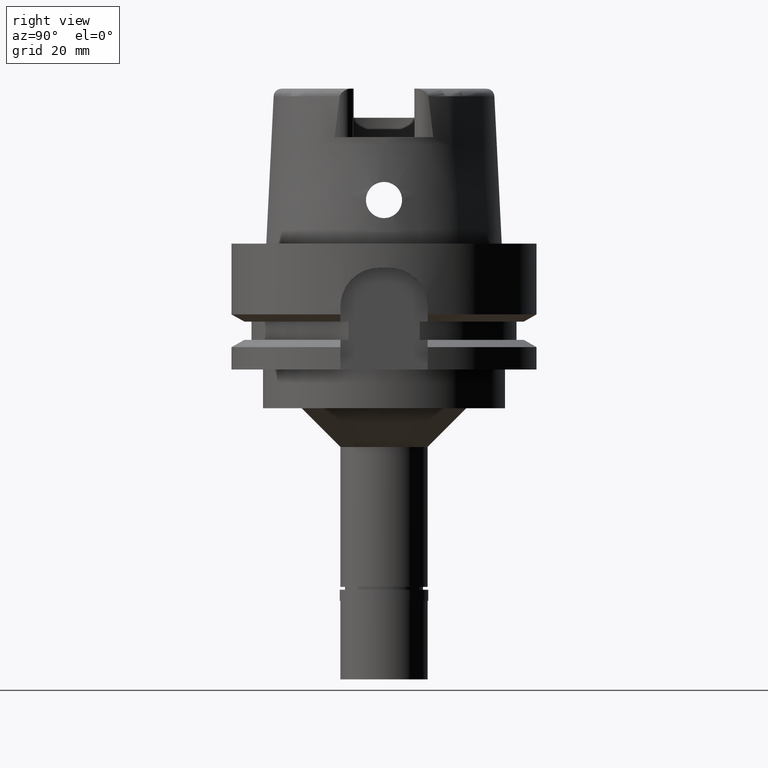
[diagram: clean part render]
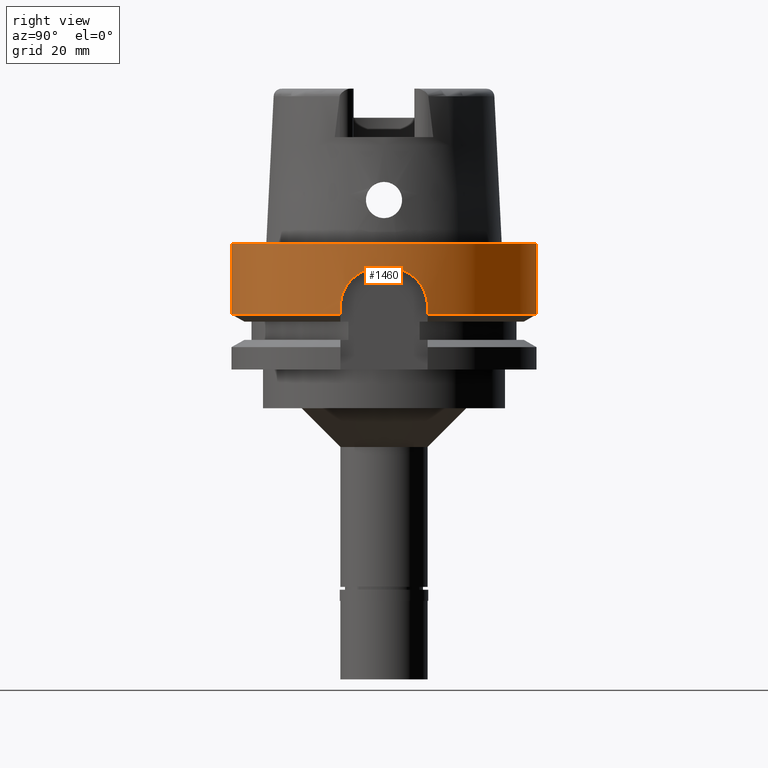
[diagram: same view with one face highlighted and labeled with its STEP entity id]
A machine part, right view. The second image highlights one B-rep face of the part: STEP entity #1460.
In plain terms, the highlighted cylindrical surface (partial cylindrical patch) has radius 31.5 mm, axis along (0, 0, 1).
Its self-contained STEP definition (entity closure, byte-faithful):
#11 = VERTEX_POINT ( 'NONE', #3044 ) ;
#12 = CARTESIAN_POINT ( 'NONE',  ( 30.56327291431076532, -7.624729290202544973, -8.515222109655489646 ) ) ;
#16 = CARTESIAN_POINT ( 'NONE',  ( 31.02035589035170915, 5.476087873240740755, -6.369416111996536678 ) ) ;
#35 = CARTESIAN_POINT ( 'NONE',  ( 0.0000000000000000000, -31.50000000000000000, 6.631732200427999741E-14 ) ) ;
#42 = CARTESIAN_POINT ( 'NONE',  ( 31.02757053954932687, -5.435059803492189090, -6.341903749152772107 ) ) ;
#46 = CARTESIAN_POINT ( 'NONE',  ( 30.69029763763957064, 7.097590143377178862, -7.819184594781064312 ) ) ;
#102 = CARTESIAN_POINT ( 'NONE',  ( 31.23407994377791397, 4.084403881573126505, -5.618500894994809869 ) ) ;
#167 = ORIENTED_EDGE ( 'NONE', *, *, #354, .T. ) ;
#233 = EDGE_LOOP ( 'NONE', ( #1655, #4086, #4481, #2196, #3278, #2844, #5002, #167, #491, #3403 ) ) ;
#257 = EDGE_CURVE ( 'NONE', #2624, #1244, #5349, .T. ) ;
#354 = EDGE_CURVE ( 'NONE', #3709, #3169, #5124, .T. ) ;
#357 = CARTESIAN_POINT ( 'NONE',  ( 30.89592524605593482, -6.138852804539231656, -6.866599488725563027 ) ) ;
#363 = CARTESIAN_POINT ( 'NONE',  ( 31.15709635213817563, 4.636122286652613056, -5.872856191461297115 ) ) ;
#386 = CARTESIAN_POINT ( 'NONE',  ( 30.47677177980666485, 7.964102462958325468, -9.060432586989918491 ) ) ;
#413 = CARTESIAN_POINT ( 'NONE',  ( 30.77181889420382532, 6.733922234502061954, -7.421215122936176911 ) ) ;
#434 = CARTESIAN_POINT ( 'NONE',  ( 30.91819629661552327, -6.025022942647708213, -6.773736874318711187 ) ) ;
#440 = CARTESIAN_POINT ( 'NONE',  ( 30.50382873061580113, 7.859456967087232293, -8.882649062110839822 ) ) ;
#457 = DIRECTION ( 'NONE',  ( 0.0000000000000000000, -1.000000000000000000, 0.0000000000000000000 ) ) ;
#458 = DIRECTION ( 'NONE',  ( 0.0000000000000000000, 1.000000000000000000, 0.0000000000000000000 ) ) ;
#466 = CARTESIAN_POINT ( 'NONE',  ( 31.10844215230088849, -4.952194311466096899, -6.043017180630205765 ) ) ;
#470 = CARTESIAN_POINT ( 'NONE',  ( 30.35392641264656177, 8.419581061281585121, -10.00832748738728384 ) ) ;
#491 = ORIENTED_EDGE ( 'NONE', *, *, #4059, .F. ) ;
#510 = LINE ( 'NONE', #35, #3993 ) ;
#582 = CARTESIAN_POINT ( 'NONE',  ( 31.48412298285999711, 1.000000000000000000, -5.000000000000000000 ) ) ;
#795 = CARTESIAN_POINT ( 'NONE',  ( 30.37188527435133523, -8.354571907115822427, -9.851686228476292939 ) ) ;
#830 = CARTESIAN_POINT ( 'NONE',  ( 30.38243151707309408, 8.316609398672291320, -9.755899222961659234 ) ) ;
#857 = CARTESIAN_POINT ( 'NONE',  ( 30.84359566670887887, 6.403566574054852190, -7.087235430991473351 ) ) ;
#861 = CARTESIAN_POINT ( 'NONE',  ( 0.0000000000000000000, 0.0000000000000000000, -91.27000000000001023 ) ) ;
#877 = CARTESIAN_POINT ( 'NONE',  ( 31.24399740051355323, -4.007805341644793629, -5.586958715174178636 ) ) ;
#882 = CARTESIAN_POINT ( 'NONE',  ( 31.01653000483416989, 5.497697636586939218, -6.384046722709405763 ) ) ;
#904 = CARTESIAN_POINT ( 'NONE',  ( 31.24195008397816764, -4.023747576290726435, -5.593447181135141832 ) ) ;
#908 = CARTESIAN_POINT ( 'NONE',  ( 31.10348687983817584, 4.987241870800215082, -6.059383394245782206 ) ) ;
#913 = AXIS2_PLACEMENT_3D ( 'NONE', #861, #3813, #3377 ) ;
#966 = CARTESIAN_POINT ( 'NONE',  ( 31.48412298285999711, 1.000000000000000000, -5.000000000000000000 ) ) ;
#1149 = EDGE_CURVE ( 'NONE', #11, #3680, #2477, .T. ) ;
#1157 = DIRECTION ( 'NONE',  ( 0.0000000000000000000, 0.0000000000000000000, 1.000000000000000000 ) ) ;
#1159 = CARTESIAN_POINT ( 'NONE',  ( 31.37946033477879837, -2.757835126027505801, -5.191188930963830828 ) ) ;
#1168 = LINE ( 'NONE', #2525, #1795 ) ;
#1172 = FACE_OUTER_BOUND ( 'NONE', #233, .T. ) ;
#1212 = CIRCLE ( 'NONE', #3914, 31.49999999999999645 ) ;
#1217 = CARTESIAN_POINT ( 'NONE',  ( 30.85883347346776873, -6.322486399443356220, -7.026915284181375121 ) ) ;
#1244 = VERTEX_POINT ( 'NONE', #3665 ) ;
#1245 = CARTESIAN_POINT ( 'NONE',  ( 31.18019589299252559, -4.482839825108475118, -5.793091966929995174 ) ) ;
#1249 = CARTESIAN_POINT ( 'NONE',  ( 31.19799972827712153, 4.351565985926351132, -5.735641797417345700 ) ) ;
#1276 = CARTESIAN_POINT ( 'NONE',  ( 30.35590524618772790, 8.412437270101454700, -9.990681766859452750 ) ) ;
#1297 = CARTESIAN_POINT ( 'NONE',  ( 30.18691769625000276, -9.000000000000000000, -13.00000000000000000 ) ) ;
#1301 = CARTESIAN_POINT ( 'NONE',  ( 30.77719077305206596, 6.709296413855488694, -7.396062748197240744 ) ) ;
#1322 = CARTESIAN_POINT ( 'NONE',  ( 30.56945133986046059, -7.599967336995864464, -8.478765970718441736 ) ) ;
#1325 = CARTESIAN_POINT ( 'NONE',  ( 30.45965964863409070, 8.029270451520762464, -9.178136588469529400 ) ) ;
#1355 = CARTESIAN_POINT ( 'NONE',  ( 31.02011673131791980, 5.477441741397547581, -6.370330594094840926 ) ) ;
#1381 = CARTESIAN_POINT ( 'NONE',  ( 31.23158884632286103, 4.103412132184693029, -5.626473900304442388 ) ) ;
#1393 = CARTESIAN_POINT ( 'NONE',  ( 31.48412298285999711, -1.000000000000000000, -5.000000000000000000 ) ) ;
#1430 = CARTESIAN_POINT ( 'NONE',  ( 31.43986794296929688, 2.003488789262930059, -5.045756880272855405 ) ) ;
#1460 = ADVANCED_FACE ( 'NONE', ( #1172 ), #4665, .T. ) ;
#1501 = CARTESIAN_POINT ( 'NONE',  ( 30.18691769625000276, -9.000000000000000000, -13.00000000000000000 ) ) ;
#1510 = CARTESIAN_POINT ( 'NONE',  ( 0.0000000000000000000, 0.0000000000000000000, -14.62250092523999889 ) ) ;
#1536 = DIRECTION ( 'NONE',  ( 0.9583148474999051425, 0.2857142857143015191, 0.0000000000000000000 ) ) ;
#1568 = CARTESIAN_POINT ( 'NONE',  ( 31.48412298285999711, -1.000000000000000000, -5.000000000000000000 ) ) ;
#1650 = CARTESIAN_POINT ( 'NONE',  ( 31.25413861043860919, -3.928043835539510642, -5.554959836802702888 ) ) ;
#1655 = ORIENTED_EDGE ( 'NONE', *, *, #4300, .T. ) ;
#1677 = CARTESIAN_POINT ( 'NONE',  ( 30.48043229704786583, -7.950839016376769486, -9.030638300143040809 ) ) ;
#1684 = CARTESIAN_POINT ( 'NONE',  ( 30.54736295605518137, 7.688227373615902138, -8.610494918237405315 ) ) ;
#1705 = CARTESIAN_POINT ( 'NONE',  ( 31.02975371388586012, -5.422580506590689353, -6.333605288789759591 ) ) ;
#1710 = CARTESIAN_POINT ( 'NONE',  ( 30.99899439720050864, 5.595298041510808673, -6.451348867073719795 ) ) ;
#1735 = CARTESIAN_POINT ( 'NONE',  ( 30.55810284740109850, -7.645413535612046729, -8.545958201535063026 ) ) ;
#1739 = CARTESIAN_POINT ( 'NONE',  ( 31.06397604752711672, 5.228856899895014898, -6.202622644320769041 ) ) ;
#1763 = CARTESIAN_POINT ( 'NONE',  ( 30.78105097587181405, 6.691555907720959873, -7.378059325245120981 ) ) ;
#1795 = VECTOR ( 'NONE', #2107, 1000.000000000000000 ) ;
#2002 = B_SPLINE_CURVE_WITH_KNOTS ( 'NONE', 3,
 ( #2188, #3464, #4305, #2983, #2576, #5178, #3062, #5510, #4275, #5540, #470, #1276, #830, #4708, #1325, #386, #440, #3925, #3810, #2953, #1684, #4246, #4786, #3033, #3399, #5564, #5127, #46, #5151, #3373, #5100, #413, #1301, #2609, #1763, #2163, #857, #3011, #3490, #2136, #3866, #1710, #5203, #4684, #882, #4731, #4332, #1355, #3898, #16, #1739, #908, #363, #2493, #1249, #4812, #4442, #3168, #1381, #3978, #102, #3085, #2741, #1430, #2242, #966 ),
 .UNSPECIFIED., .F., .F.,
 ( 4, 2, 2, 1, 1, 1, 2, 2, 2, 2, 1, 1, 1, 1, 2, 2, 2, 2, 1, 1, 1, 1, 2, 2, 2, 2, 2, 1, 1, 1, 1, 2, 2, 2, 2, 1, 1, 1, 2, 2, 2, 4 ),
 ( 0.0000000000000000000, 0.1250000000000019429, 0.1875000000000031364, 0.2187500000000039135, 0.2343750000000043299, 0.2421875000000046074, 0.2460937500000046074, 0.2500000000000046074, 0.3125000000000036082, 0.3437500000000029976, 0.3593750000000024980, 0.3671875000000022204, 0.3710937500000019984, 0.3730468750000019984, 0.3740234375000022204, 0.3750000000000023870, 0.4375000000000139888, 0.4687500000000197620, 0.4843750000000226485, 0.4921875000000240918, 0.4960937500000248135, 0.4980468750000250910, 0.4990234375000252576, 0.5000000000000253131, 0.5625000000000228706, 0.5937500000000215383, 0.6093750000000209832, 0.6171875000000205391, 0.6210937500000202061, 0.6230468750000200950, 0.6240234375000200950, 0.6245117187500200950, 0.6250000000000202061, 0.6875000000000156541, 0.7187500000000134337, 0.7343750000000123235, 0.7421875000000117684, 0.7460937500000115463, 0.7480468750000114353, 0.7500000000000112133, 0.8750000000000055511, 1.000000000000000000 ),
 .UNSPECIFIED. ) ;
#2071 = CARTESIAN_POINT ( 'NONE',  ( 30.69482115303991066, -7.079538585935337025, -7.793475488920598160 ) ) ;
#2099 = CARTESIAN_POINT ( 'NONE',  ( 31.02875186934051754, -5.428309958405625579, -6.337412201392631061 ) ) ;
#2107 = DIRECTION ( 'NONE',  ( 0.0000000000000000000, 2.672583210395999918E-14, -1.000000000000000000 ) ) ;
#2130 = CARTESIAN_POINT ( 'NONE',  ( 30.81504229801410233, -6.533247093358816926, -7.221853009415159619 ) ) ;
#2136 = CARTESIAN_POINT ( 'NONE',  ( 30.97063455020149192, 5.749568475192215367, -6.561754393618531189 ) ) ;
#2147 = AXIS2_PLACEMENT_3D ( 'NONE', #4629, #1157, #4515 ) ;
#2158 = CARTESIAN_POINT ( 'NONE',  ( 30.79700583567161232, -6.617730798161058026, -7.304278403300165756 ) ) ;
#2163 = CARTESIAN_POINT ( 'NONE',  ( 30.78164773037225643, 6.688810743215817922, -7.375280342673156575 ) ) ;
#2184 = CARTESIAN_POINT ( 'NONE',  ( 30.73933918572957324, -6.884727301372453034, -7.570616432628152204 ) ) ;
#2188 = CARTESIAN_POINT ( 'NONE',  ( 30.18691769625000276, 9.000000000000000000, -13.00000000000000000 ) ) ;
#2196 = ORIENTED_EDGE ( 'NONE', *, *, #4984, .T. ) ;
#2242 = CARTESIAN_POINT ( 'NONE',  ( 31.46845245974145300, 1.493372677079971567, -4.999999999999995559 ) ) ;
#2477 = LINE ( 'NONE', #3880, #5479 ) ;
#2486 = CARTESIAN_POINT ( 'NONE',  ( 30.36380381512983817, -8.383876217271971854, -9.921266635365807218 ) ) ;
#2493 = CARTESIAN_POINT ( 'NONE',  ( 31.17402338021041075, 4.520949293105211986, -5.815398780086995956 ) ) ;
#2516 = CARTESIAN_POINT ( 'NONE',  ( 30.80247723463352472, -6.592226931967446468, -7.279162025557757154 ) ) ;
#2525 = CARTESIAN_POINT ( 'NONE',  ( 0.0000000000000000000, 31.50000000000000000, 6.631732200427999741E-14 ) ) ;
#2545 = CARTESIAN_POINT ( 'NONE',  ( 30.43127735087161767, -8.136138286657470076, -9.381570895033227941 ) ) ;
#2572 = CARTESIAN_POINT ( 'NONE',  ( 30.84585534981359700, -6.385837090539616234, -7.083861425572433923 ) ) ;
#2576 = CARTESIAN_POINT ( 'NONE',  ( 30.26153241073083677, 8.748062192346823807, -10.99057764098742673 ) ) ;
#2593 = DIRECTION ( 'NONE',  ( 0.0000000000000000000, 0.0000000000000000000, 1.000000000000000000 ) ) ;
#2602 = CARTESIAN_POINT ( 'NONE',  ( 31.21189949938594310, -4.256277061384651006, -5.688947586208281670 ) ) ;
#2609 = CARTESIAN_POINT ( 'NONE',  ( 30.77950526087336769, 6.698662769816077223, -7.385263297616807776 ) ) ;
#2624 = VERTEX_POINT ( 'NONE', #5517 ) ;
#2741 = CARTESIAN_POINT ( 'NONE',  ( 31.35687092211762561, 3.036875881674324429, -5.245768252073166771 ) ) ;
#2844 = ORIENTED_EDGE ( 'NONE', *, *, #257, .F. ) ;
#2861 = CARTESIAN_POINT ( 'NONE',  ( 31.35595750367635404, -3.014566336650574385, -5.253180908638952928 ) ) ;
#2909 = AXIS2_PLACEMENT_3D ( 'NONE', #4880, #4423, #458 ) ;
#2922 = CARTESIAN_POINT ( 'NONE',  ( 30.56024303310427115, -7.636854919309933543, -8.533208848254236756 ) ) ;
#2929 = CARTESIAN_POINT ( 'NONE',  ( 0.0000000000000000000, -31.50000000000000000, 4.263256414560999963E-14 ) ) ;
#2946 = CARTESIAN_POINT ( 'NONE',  ( 31.00744036892090705, -5.549986775252023108, -6.418480569347758902 ) ) ;
#2953 = CARTESIAN_POINT ( 'NONE',  ( 30.54305007120773396, 7.705364908225894816, -8.636671024395578655 ) ) ;
#2983 = CARTESIAN_POINT ( 'NONE',  ( 30.24376700252111760, 8.809464133586452306, -11.24528860744288039 ) ) ;
#3003 = CARTESIAN_POINT ( 'NONE',  ( 31.03673334283637786, -5.382506154909126650, -6.307151344352410760 ) ) ;
#3011 = CARTESIAN_POINT ( 'NONE',  ( 30.89393421691985253, 6.150596398140099730, -6.872994670001324025 ) ) ;
#3020 = DIRECTION ( 'NONE',  ( 1.273816923371999416E-07, -4.272500227479002788E-07, 0.9999999999999006350 ) ) ;
#3029 = CARTESIAN_POINT ( 'NONE',  ( 30.55788224197635472, -7.646295602780432077, -8.547273281320325822 ) ) ;
#3033 = CARTESIAN_POINT ( 'NONE',  ( 30.55127413516716217, 7.672658002960806911, -8.586878125414314056 ) ) ;
#3044 = CARTESIAN_POINT ( 'NONE',  ( 30.18691748956999987, 9.000000693210997937, -14.62249533425000081 ) ) ;
#3062 = CARTESIAN_POINT ( 'NONE',  ( 30.31083141851281582, 8.574232033791354013, -10.41880134730921803 ) ) ;
#3085 = CARTESIAN_POINT ( 'NONE',  ( 31.30245841803814244, 3.560143627477010408, -5.400107839718196523 ) ) ;
#3168 = CARTESIAN_POINT ( 'NONE',  ( 31.22891220615206720, 4.123769901135962535, -5.635053136688086717 ) ) ;
#3169 = VERTEX_POINT ( 'NONE', #582 ) ;
#3278 = ORIENTED_EDGE ( 'NONE', *, *, #3663, .T. ) ;
#3280 = CARTESIAN_POINT ( 'NONE',  ( 31.46862109414773911, -1.488063370870526869, -4.999999999999999112 ) ) ;
#3335 = CARTESIAN_POINT ( 'NONE',  ( 30.41583240889568884, -8.193543609552943252, -9.497313212681417482 ) ) ;
#3366 = CARTESIAN_POINT ( 'NONE',  ( 31.04595076045890778, -5.329161858604800628, -6.272395426871520741 ) ) ;
#3373 = CARTESIAN_POINT ( 'NONE',  ( 30.74038821768763441, 6.876532332818277027, -7.570738927795511053 ) ) ;
#3377 = DIRECTION ( 'NONE',  ( 0.0000000000000000000, 1.000000000000000000, 0.0000000000000000000 ) ) ;
#3392 = CARTESIAN_POINT ( 'NONE',  ( 30.63672346486158204, -7.325338077193447539, -8.100278586001699921 ) ) ;
#3399 = CARTESIAN_POINT ( 'NONE',  ( 30.57903053685991779, 7.562050370405573041, -8.419778929429849512 ) ) ;
#3403 = ORIENTED_EDGE ( 'NONE', *, *, #1149, .F. ) ;
#3425 = CARTESIAN_POINT ( 'NONE',  ( 30.82546686514514533, -6.483647057172825079, -7.174916382422021677 ) ) ;
#3454 = CARTESIAN_POINT ( 'NONE',  ( 31.24076835152277809, -4.032916262569481880, -5.597198335297971283 ) ) ;
#3464 = CARTESIAN_POINT ( 'NONE',  ( 30.18691769624999566, 9.000000000000003553, -12.51008829040280013 ) ) ;
#3490 = CARTESIAN_POINT ( 'NONE',  ( 30.95345753080943751, 5.841206082043544079, -6.629761930368998080 ) ) ;
#3510 = CARTESIAN_POINT ( 'NONE',  ( 0.0000000000000000000, 31.50000000000000000, -14.62250092523999889 ) ) ;
#3663 = EDGE_CURVE ( 'NONE', #3991, #1244, #4166, .T. ) ;
#3665 = CARTESIAN_POINT ( 'NONE',  ( 30.18691773976999926, -8.999999854034999913, -14.62250210248000037 ) ) ;
#3680 = VERTEX_POINT ( 'NONE', #4649 ) ;
#3709 = VERTEX_POINT ( 'NONE', #1393 ) ;
#3805 = VERTEX_POINT ( 'NONE', #3510 ) ;
#3806 = CARTESIAN_POINT ( 'NONE',  ( 31.26803911053300311, -3.816231887001251710, -5.511539661999441897 ) ) ;
#3810 = CARTESIAN_POINT ( 'NONE',  ( 30.53450024899996862, 7.739241232943039783, -8.688986330745915865 ) ) ;
#3813 = DIRECTION ( 'NONE',  ( 0.0000000000000000000, 0.0000000000000000000, 1.000000000000000000 ) ) ;
#3835 = CARTESIAN_POINT ( 'NONE',  ( 30.18691769625000632, -8.999999999999998224, -12.01193902588949136 ) ) ;
#3859 = CARTESIAN_POINT ( 'NONE',  ( 31.24705914569546650, -3.983887005956073590, -5.577268967060735605 ) ) ;
#3866 = CARTESIAN_POINT ( 'NONE',  ( 30.99240395143285198, 5.631454326828690959, -6.476811928538523944 ) ) ;
#3880 = CARTESIAN_POINT ( 'NONE',  ( 30.18691748956999987, 9.000000693210997937, -14.62249533425000081 ) ) ;
#3894 = CARTESIAN_POINT ( 'NONE',  ( 30.79121546752939409, -6.644631415599400626, -7.330939948551967511 ) ) ;
#3898 = CARTESIAN_POINT ( 'NONE',  ( 31.02040635682861236, 5.475801511460760551, -6.369223136825553411 ) ) ;
#3914 = AXIS2_PLACEMENT_3D ( 'NONE', #1510, #5389, #1536 ) ;
#3920 = CARTESIAN_POINT ( 'NONE',  ( 31.07910009556929509, -5.132257793432127180, -6.149503084829006205 ) ) ;
#3925 = CARTESIAN_POINT ( 'NONE',  ( 30.51770439453294870, 7.805411105753589318, -8.793451499976264074 ) ) ;
#3938 = VERTEX_POINT ( 'NONE', #2929 ) ;
#3978 = CARTESIAN_POINT ( 'NONE',  ( 31.23336590750940189, 4.089860236215323575, -5.620784748651241003 ) ) ;
#3991 = VERTEX_POINT ( 'NONE', #4099 ) ;
#3993 = VECTOR ( 'NONE', #5238, 1000.000000000000000 ) ;
#4041 = EDGE_CURVE ( 'NONE', #4533, #3805, #1168, .T. ) ;
#4057 = CARTESIAN_POINT ( 'NONE',  ( 0.0000000000000000000, 31.50000000000000000, 6.631732200427999741E-14 ) ) ;
#4059 = EDGE_CURVE ( 'NONE', #3680, #3169, #2002, .T. ) ;
#4086 = ORIENTED_EDGE ( 'NONE', *, *, #4041, .F. ) ;
#4099 = CARTESIAN_POINT ( 'NONE',  ( 0.0000000000000000000, -31.50000000000000000, -14.62250092523999889 ) ) ;
#4166 = CIRCLE ( 'NONE', #5043, 31.50000000000000000 ) ;
#4240 = CARTESIAN_POINT ( 'NONE',  ( 30.36244245516877527, -8.388806609685383719, -9.933107166858786030 ) ) ;
#4246 = CARTESIAN_POINT ( 'NONE',  ( 30.54921947250628023, 7.680839830918533728, -8.599272874080172713 ) ) ;
#4270 = CARTESIAN_POINT ( 'NONE',  ( 30.24482277135722441, -8.814411736599831571, -10.96472903684741063 ) ) ;
#4275 = CARTESIAN_POINT ( 'NONE',  ( 30.34522413846882216, 8.450956061498233751, -10.08705281264352394 ) ) ;
#4299 = CARTESIAN_POINT ( 'NONE',  ( 31.31597769099876061, -3.399647271448062114, -5.367201439682013131 ) ) ;
#4300 = EDGE_CURVE ( 'NONE', #11, #3805, #1212, .T. ) ;
#4305 = CARTESIAN_POINT ( 'NONE',  ( 30.20113002281777526, 8.954875618601359832, -12.00656032274056351 ) ) ;
#4325 = CARTESIAN_POINT ( 'NONE',  ( 31.12707613146585928, -4.833512264886149268, -5.977065579397019768 ) ) ;
#4328 = EDGE_CURVE ( 'NONE', #3709, #2624, #5363, .T. ) ;
#4332 = CARTESIAN_POINT ( 'NONE',  ( 31.01968034181755840, 5.479912156189524985, -6.371999243634332011 ) ) ;
#4355 = CARTESIAN_POINT ( 'NONE',  ( 30.59409496528373751, -7.500483837481618288, -8.336634575803490321 ) ) ;
#4416 = VECTOR ( 'NONE', #5201, 1000.000000000000000 ) ;
#4423 = DIRECTION ( 'NONE',  ( 0.0000000000000000000, 0.0000000000000000000, -1.000000000000000000 ) ) ;
#4442 = CARTESIAN_POINT ( 'NONE',  ( 31.22258937368360776, 4.171479275548858112, -5.655392103961915495 ) ) ;
#4465 = CIRCLE ( 'NONE', #2909, 31.50000000000000000 ) ;
#4481 = ORIENTED_EDGE ( 'NONE', *, *, #5026, .T. ) ;
#4515 = DIRECTION ( 'NONE',  ( 0.9994959677099152229, -0.03174603174603050915, 0.0000000000000000000 ) ) ;
#4533 = VERTEX_POINT ( 'NONE', #4057 ) ;
#4629 = CARTESIAN_POINT ( 'NONE',  ( 0.0000000000000000000, 0.0000000000000000000, -5.000000000000000000 ) ) ;
#4649 = CARTESIAN_POINT ( 'NONE',  ( 30.18691769625000276, 9.000000000000000000, -13.00000000000000000 ) ) ;
#4655 = CARTESIAN_POINT ( 'NONE',  ( 31.03208659646304923, -5.409216282123028741, -6.324750306159960367 ) ) ;
#4665 = CYLINDRICAL_SURFACE ( 'NONE', #913, 31.50000000000000000 ) ;
#4679 = CARTESIAN_POINT ( 'NONE',  ( 30.36701877306688502, -8.372224273425402430, -9.893468753605761279 ) ) ;
#4684 = CARTESIAN_POINT ( 'NONE',  ( 31.01207459424045254, 5.522720489720676973, -6.401095155053389441 ) ) ;
#4705 = CARTESIAN_POINT ( 'NONE',  ( 31.02808352014885429, -5.432130017167840386, -6.339952795003172881 ) ) ;
#4708 = CARTESIAN_POINT ( 'NONE',  ( 30.41110076321699651, 8.211941736819120763, -9.527676793154311596 ) ) ;
#4727 = CARTESIAN_POINT ( 'NONE',  ( 30.58228284350669668, -7.548370151250213489, -8.403947387693419202 ) ) ;
#4731 = CARTESIAN_POINT ( 'NONE',  ( 31.01864844100994389, 5.485746890530525555, -6.375945085062532769 ) ) ;
#4744 = CARTESIAN_POINT ( 'NONE',  ( 0.0000000000000000000, 0.0000000000000000000, -14.62250092523999889 ) ) ;
#4754 = CARTESIAN_POINT ( 'NONE',  ( 30.51696242149663263, -7.809845290297613651, -8.791692092218449162 ) ) ;
#4786 = CARTESIAN_POINT ( 'NONE',  ( 30.55045895841384507, 7.675905254472620065, -8.591790713169455529 ) ) ;
#4812 = CARTESIAN_POINT ( 'NONE',  ( 31.20963435380005890, 4.267716961173629642, -5.697370559067861606 ) ) ;
#4880 = CARTESIAN_POINT ( 'NONE',  ( 0.0000000000000000000, 0.0000000000000000000, 4.263256414560999963E-14 ) ) ;
#4984 = EDGE_CURVE ( 'NONE', #3938, #3991, #510, .T. ) ;
#5002 = ORIENTED_EDGE ( 'NONE', *, *, #4328, .F. ) ;
#5003 = CARTESIAN_POINT ( 'NONE',  ( 31.44051769603838054, -1.992201451373964538, -5.044775625497226912 ) ) ;
#5026 = EDGE_CURVE ( 'NONE', #4533, #3938, #4465, .T. ) ;
#5043 = AXIS2_PLACEMENT_3D ( 'NONE', #4744, #2593, #457 ) ;
#5061 = CARTESIAN_POINT ( 'NONE',  ( 30.38354889466722497, -8.312147822786565499, -9.753605241942015169 ) ) ;
#5094 = CARTESIAN_POINT ( 'NONE',  ( 31.06408129520745121, -5.222798203875799850, -6.204635478984620534 ) ) ;
#5100 = CARTESIAN_POINT ( 'NONE',  ( 30.76118950744636749, 6.782434048097869095, -7.471328255062289259 ) ) ;
#5121 = CARTESIAN_POINT ( 'NONE',  ( 30.55895722649469803, -7.641997304112444489, -8.540865418723983638 ) ) ;
#5124 = CIRCLE ( 'NONE', #2147, 31.49999999999999289 ) ;
#5127 = CARTESIAN_POINT ( 'NONE',  ( 30.66966176652903897, 7.186170187093612327, -7.925718078167228065 ) ) ;
#5147 = CARTESIAN_POINT ( 'NONE',  ( 30.39407505605601045, -8.273618492835849381, -9.668567107260695792 ) ) ;
#5151 = CARTESIAN_POINT ( 'NONE',  ( 30.72334279861928863, 6.952290265760074028, -7.654384596042381972 ) ) ;
#5175 = CARTESIAN_POINT ( 'NONE',  ( 30.61880412894482006, -7.399535192596104594, -8.198019354211332654 ) ) ;
#5178 = CARTESIAN_POINT ( 'NONE',  ( 30.29351014550834265, 8.635571265416370323, -10.60926518846373590 ) ) ;
#5201 = DIRECTION ( 'NONE',  ( 2.682136164057977873E-08, 8.996268125824919243E-08, -0.9999999999999955591 ) ) ;
#5203 = CARTESIAN_POINT ( 'NONE',  ( 31.00788103388783412, 5.546077776525469183, -6.417175698261901040 ) ) ;
#5238 = DIRECTION ( 'NONE',  ( 0.0000000000000000000, -2.672583210395999918E-14, -1.000000000000000000 ) ) ;
#5349 = LINE ( 'NONE', #1501, #4416 ) ;
#5363 = B_SPLINE_CURVE_WITH_KNOTS ( 'NONE', 3,
 ( #1568, #3280, #5003, #1159, #2861, #4299, #5560, #3806, #1650, #3859, #877, #904, #3454, #2602, #1245, #4325, #466, #3920, #5094, #3366, #3003, #4655, #1705, #2099, #4705, #42, #2946, #5534, #434, #357, #1217, #2572, #3425, #2130, #2516, #2158, #5502, #3894, #2184, #2071, #3392, #5175, #4355, #4727, #1322, #12, #2922, #5121, #1735, #3029, #4754, #1677, #2545, #3335, #5147, #5061, #795, #4679, #2486, #4240, #4270, #3835, #1297 ),
 .UNSPECIFIED., .F., .F.,
 ( 4, 2, 2, 1, 1, 1, 1, 2, 2, 2, 2, 1, 1, 1, 1, 1, 2, 2, 2, 2, 2, 1, 1, 2, 2, 2, 2, 1, 1, 1, 1, 2, 2, 2, 2, 1, 1, 2, 2, 4 ),
 ( 0.0000000000000000000, 0.1249999999999352740, 0.1874999999999028277, 0.2187499999998865907, 0.2343749999998784861, 0.2421874999998743783, 0.2460937499998724631, 0.2480468749998715472, 0.2499999999998706590, 0.3124999999998392397, 0.3437499999998235301, 0.3593749999998156475, 0.3671874999998117062, 0.3710937499998096523, 0.3730468749998087641, 0.3740234374998084310, 0.3745117187498083200, 0.3749999999998081535, 0.4374999999998319677, 0.4687499999998439582, 0.4843749999998500089, 0.4921874999998530065, 0.4960937499998545053, 0.4980468749998551714, 0.4999999999998558931, 0.5624999999998759881, 0.5937499999998862021, 0.6093749999998911981, 0.6171874999998937517, 0.6210937499998950839, 0.6230468749998958611, 0.6240234374998961941, 0.6249999999998964162, 0.6874999999999152900, 0.7187499999999247269, 0.7343749999999292788, 0.7421874999999314992, 0.7460937499999326095, 0.7499999999999337197, 1.000000000000000000 ),
 .UNSPECIFIED. ) ;
#5389 = DIRECTION ( 'NONE',  ( 0.0000000000000000000, 0.0000000000000000000, 1.000000000000000000 ) ) ;
#5479 = VECTOR ( 'NONE', #3020, 1000.000000000000000 ) ;
#5502 = CARTESIAN_POINT ( 'NONE',  ( 30.79333904263061328, -6.634782450592885183, -7.321147073377346715 ) ) ;
#5510 = CARTESIAN_POINT ( 'NONE',  ( 30.33337128017889839, 8.493576423507311901, -10.19744813749852774 ) ) ;
#5517 = CARTESIAN_POINT ( 'NONE',  ( 30.18691769625000276, -9.000000000000000000, -13.00000000000000000 ) ) ;
#5534 = CARTESIAN_POINT ( 'NONE',  ( 30.97763905479677504, -5.714768546440764041, -6.531631589735306775 ) ) ;
#5540 = CARTESIAN_POINT ( 'NONE',  ( 30.35042884790527040, 8.432196953007862206, -10.03980811443725152 ) ) ;
#5560 = CARTESIAN_POINT ( 'NONE',  ( 31.29480639315399060, -3.592178978859550842, -5.429466549008637344 ) ) ;
#5564 = CARTESIAN_POINT ( 'NONE',  ( 30.61193686182529561, 7.429548177893161132, -8.232499118841225538 ) ) ;